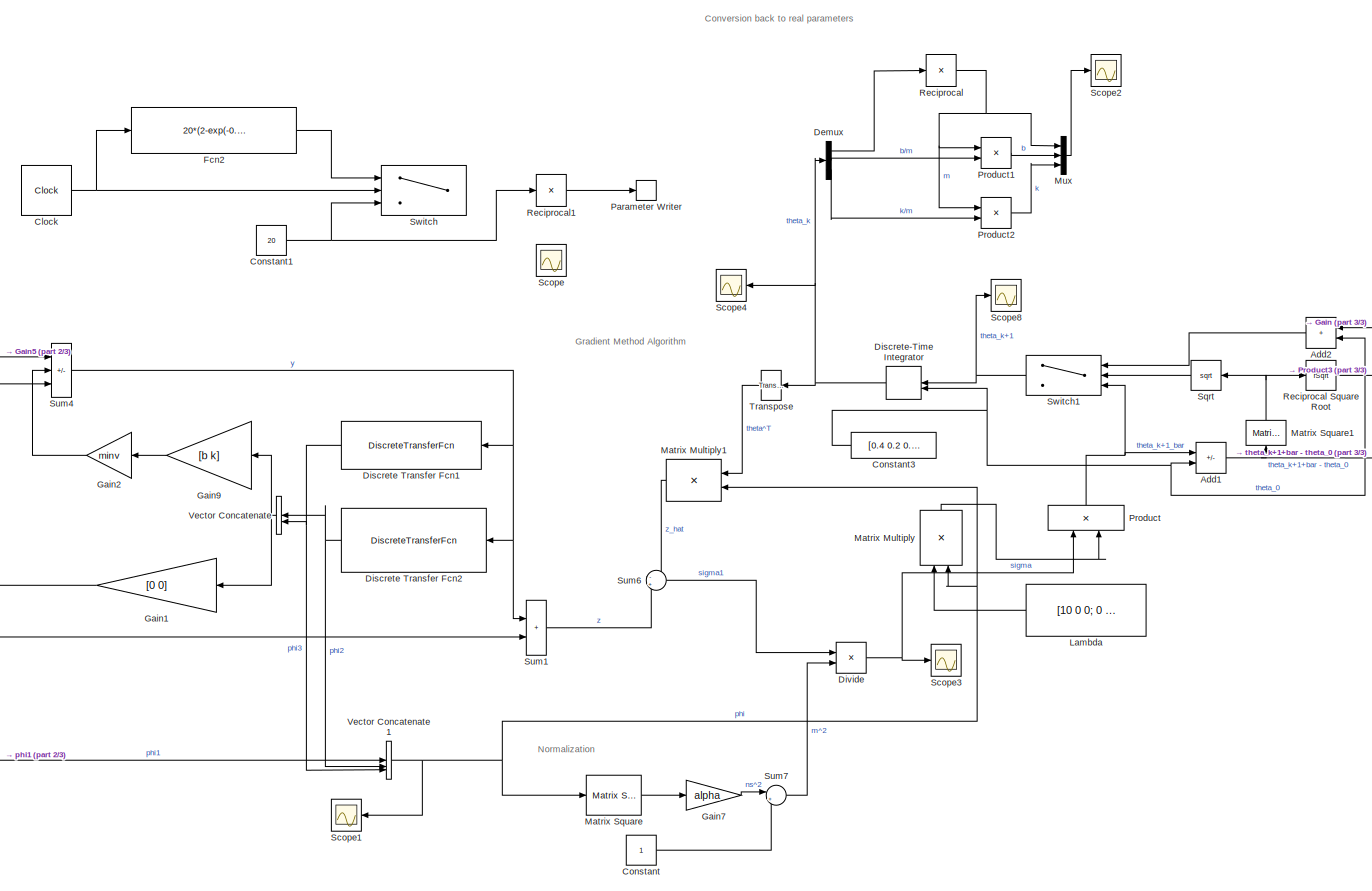
[diagram: root canvas - part 1/3, center side, full height]
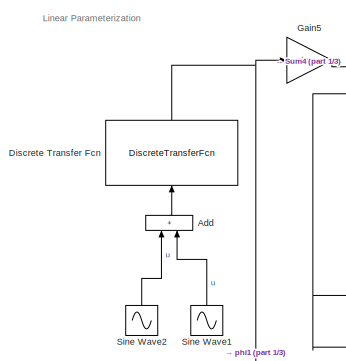
[diagram: root canvas - part 2/3, middle left region]
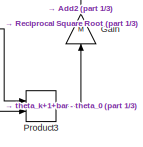
[diagram: root canvas - part 3/3, middle right region]
MODEL slx_7efa66e7af72
KIND model
CONFIG AbsTol = auto
CONFIG EnableMultiTasking = off
CONFIG FixedStep = auto
CONFIG MaxStep = auto
CONFIG MinStep = auto
CONFIG RelTol = 1e-3
CONFIG SampleTimeConstraint = Unconstrained
CONFIG SolverName = VariableStepAuto
CONFIG StartTime = 0.0
CONFIG StopTime = 700
WORKSPACE source: mxarray member
WORKSPACE M: Simulink.Parameter (value not decoded)
WORKSPACE alpha: Simulink.Parameter (value not decoded)
WORKSPACE b: Simulink.Parameter (value not decoded)
WORKSPACE k: Simulink.Parameter (value not decoded)
WORKSPACE m: Simulink.Parameter (value not decoded)
WORKSPACE minv: Simulink.Parameter (value not decoded)
BLOCK [Sum] Add
  IconShape = rectangular
  NameLocation = right
BLOCK [Sum] Add1
  IconShape = rectangular
  Inputs = +-
BLOCK [Sum] Add2
  IconShape = rectangular
BLOCK [Clock] Clock
  DisplayTime = on
BLOCK [Constant] Constant
BLOCK [Constant] Constant1
  Value = 20
BLOCK [Constant] Constant3
  NameLocation = top
  Value = [0.4 0.2 0.2]
BLOCK [Demux] Demux
  Outputs = 3
BLOCK [DiscreteTransferFcn] Discrete Transfer Fcn
  Denominator = [1 -1.482 0.5488]
  InputPortMap = u0
  NameLocation = right
  Numerator = [0.004104 0.00336]
BLOCK [DiscreteTransferFcn] Discrete Transfer Fcn1
  Denominator = [1 -1.482 0.5488]
  InputPortMap = u0
  NameLocation = top
  Numerator = [-0.004104 -0.00336]
BLOCK [DiscreteTransferFcn] Discrete Transfer Fcn2
  Denominator = [1 -1.482 0.5488]
  InputPortMap = u0
  NameLocation = top
  Numerator = [-0.07408 0.07408]
BLOCK [DiscreteIntegrator] Discrete-Time Integrator
  ICPrevOutput = DiscIntNeverNeededParam
  ICPrevScaledInput = DiscIntNeverNeededParam
  InitialCondition = [0.4 0.2 0.2]
  InitialConditionSetting = Auto
  InitialConditionSource = external
  NameLocation = top
  SampleTime = -1
BLOCK [Product] Divide
  Inputs = */
BLOCK [Fcn] Fcn2
  Expr = 20*(2-exp(-0.01*(u-20)))
BLOCK [Gain] Gain
  Gain = M
  NameLocation = right
BLOCK [Gain] Gain1
  Gain = [0 0]
  Multiplication = Matrix(K*u)
BLOCK [Gain] Gain2
  Gain = minv
BLOCK [Gain] Gain5
  Gain = minv
BLOCK [Gain] Gain7
  Gain = alpha
BLOCK [Gain] Gain9
  Gain = [b k]
  Multiplication = Matrix(K*u)
BLOCK [Constant] Lambda
  Value = [10 0 0; 0 10000 0; 0 0 100]
BLOCK [Product] Matrix Multiply
  Multiplication = Matrix(*)
  NameLocation = right
BLOCK [Product] Matrix Multiply1
  Multiplication = Matrix(*)
BLOCK [Reference] Matrix Square  REF=matrix_library/Matrix
Square
  LibrarySourceBlock = simulink/Matrix\nOperations/Matrix\nSquare
  SourceBlock = matrix_library/Matrix\nSquare
  SourceType = Matrix Square
BLOCK [Reference] Matrix Square1  REF=matrix_library/Matrix
Square
  LibrarySourceBlock = simulink/Matrix\nOperations/Matrix\nSquare
  NameLocation = right
  SourceBlock = matrix_library/Matrix\nSquare
  SourceType = Matrix Square
BLOCK [Mux] Mux
  DisplayOption = bar
  Inputs = 3
BLOCK [ParameterWriter] Parameter Writer
  AccessWorkspaceVariable = on
  WorkspaceVariableName = minv
BLOCK [Product] Product
  NameLocation = left
BLOCK [Product] Product1
BLOCK [Product] Product2
BLOCK [Product] Product3
BLOCK [Product] Reciprocal
  Inputs = /
  OutMax = [10000]
BLOCK [Sqrt] Reciprocal Square Root
  Operator = rSqrt
BLOCK [Product] Reciprocal1
  Inputs = /
BLOCK [Scope] Scope
  Floating = off
  NumInputPorts = 1
  ScopeSpecificationString = Simulink.scopes.TimeScopeBlockCfg('CurrentConfiguration', extmgr.ConfigurationSet(extmgr.Configuration('Core','General UI',true),extmgr.Configuration('Core','Source UI',true),extmgr.Configuration('Sources','WiredSimulink',true,'DataLoggingVariableName','ScopeData1'),extmgr.Configuration('Visuals','Time Domain',true,'SerializedDisplays',{struct('MinYLimReal','-1.00000','MaxYLimReal','1.00000','YLab...<+1432ch>
BLOCK [Scope] Scope1
  Floating = off
  NumInputPorts = 1
  ScopeSpecificationString = Simulink.scopes.TimeScopeBlockCfg('CurrentConfiguration', extmgr.ConfigurationSet(extmgr.Configuration('Core','General UI',true),extmgr.Configuration('Core','Source UI',true),extmgr.Configuration('Sources','WiredSimulink',true,'DataLoggingVariableName','ScopeData1'),extmgr.Configuration('Visuals','Time Domain',true,'SerializedDisplays',{struct('MinYLimReal','-0.12549','MaxYLimReal','0.12579','YLab...<+1475ch>
BLOCK [Scope] Scope2
  Floating = off
  NumInputPorts = 1
  ScopeSpecificationString = Simulink.scopes.TimeScopeBlockCfg('CurrentConfiguration', extmgr.ConfigurationSet(extmgr.Configuration('Core','General UI',true),extmgr.Configuration('Core','Source UI',true),extmgr.Configuration('Sources','WiredSimulink',true,'DataLoggingVariableName','ScopeData2'),extmgr.Configuration('Visuals','Time Domain',true,'SerializedDisplays',{struct('MinYLimReal','-0.47447','MaxYLimReal','4.34834','YLab...<+1799ch>
BLOCK [Scope] Scope3
  Floating = off
  NumInputPorts = 1
  ScopeSpecificationString = Simulink.scopes.TimeScopeBlockCfg('CurrentConfiguration', extmgr.ConfigurationSet(extmgr.Configuration('Core','General UI',true),extmgr.Configuration('Core','Source UI',true),extmgr.Configuration('Sources','WiredSimulink',true,'DataLoggingVariableName','ScopeData3'),extmgr.Configuration('Visuals','Time Domain',true,'SerializedDisplays',{struct('MinYLimReal','-72.5635','MaxYLimReal','71.60589','YLa...<+1366ch>
BLOCK [Scope] Scope4
  Floating = off
  NumInputPorts = 1
  ScopeSpecificationString = Simulink.scopes.TimeScopeBlockCfg('CurrentConfiguration', extmgr.ConfigurationSet(extmgr.Configuration('Core','General UI',true),extmgr.Configuration('Core','Source UI',true),extmgr.Configuration('Sources','WiredSimulink',true,'DataLoggingVariableName','ScopeData4'),extmgr.Configuration('Visuals','Time Domain',true,'SerializedDisplays',{struct('MinYLimReal','-22.30286','MaxYLimReal','202.72576','Y...<+1497ch>
BLOCK [Scope] Scope8
  Floating = off
  NumInputPorts = 1
  ScopeSpecificationString = Simulink.scopes.TimeScopeBlockCfg('CurrentConfiguration', extmgr.ConfigurationSet(extmgr.Configuration('Core','General UI',true),extmgr.Configuration('Core','Source UI',true),extmgr.Configuration('Sources','WiredSimulink',true,'DataLoggingVariableName','ScopeData5'),extmgr.Configuration('Visuals','Time Domain',true,'SerializedDisplays',{struct('MinYLimReal','-0.4381','MaxYLimReal','1.30995','YLabe...<+1527ch>
BLOCK [Sin] Sine Wave1
  Amplitude = 5
  Frequency = 0.5
  NameLocation = right
  SampleTime = 0.1
BLOCK [Sin] Sine Wave2
  Amplitude = 2
  Frequency = 2
  NameLocation = right
  SampleTime = 0.1
BLOCK [Sqrt] Sqrt
BLOCK [Sum] Sum1
  IconShape = rectangular
BLOCK [Sum] Sum4
  IconShape = rectangular
  Inputs = ++-
BLOCK [Sum] Sum6
  Inputs = -+
BLOCK [Sum] Sum7
  Inputs = |++
BLOCK [Switch] Switch
  InputSameDT = off
  SaturateOnIntegerOverflow = off
  Threshold = 20
  ZeroCross = off
BLOCK [Switch] Switch1
  InputSameDT = off
  SaturateOnIntegerOverflow = off
  Threshold = M
BLOCK [Reference] Transpose  REF=matrix_library/Transpose
  LibrarySourceBlock = simulink/Matrix\nOperations/Transpose
  SourceBlock = matrix_library/Transpose
  SourceType = Transpose
BLOCK [Concatenate] Vector Concatenate
BLOCK [Concatenate] Vector Concatenate1
  NumInputs = 3
ANNOTATION (root): Conversion back to real parameters
ANNOTATION (root): Gradient Method Algorithm
ANNOTATION (root): Linear Parameterization
ANNOTATION (root): Normalization
NET Add1:1 -> Matrix Square1:1, Product3:2
LINE Add2:1 -> Switch1:1
LINE Add:1 -> Discrete Transfer Fcn:1
NET Clock:1 -> Fcn2:1, Switch:2
NET Constant1:1 -> Reciprocal1:1, Switch:3
NET Constant3:1 -> Add1:2, Add2:2, Discrete-Time Integrator:2
LINE Constant:1 -> Sum7:2
LINE Demux:1 -> Reciprocal:1
LINE Demux:2 -> Product1:2
LINE Demux:3 -> Product2:2
NET Discrete Transfer Fcn1:1 -> Vector Concatenate1:3, Vector Concatenate:2
NET Discrete Transfer Fcn2:1 -> Vector Concatenate1:2, Vector Concatenate:1
NET Discrete Transfer Fcn:1 -> Gain5:1, Vector Concatenate1:1
NET Discrete-Time Integrator:1 -> Demux:1, Scope4:1, Transpose:1
NET Divide:1 -> Product:1, Scope3:1
LINE Fcn2:1 -> Switch:1
NET Gain1:1 -> Sum1:2, Sum4:3
LINE Gain2:1 -> Sum4:2
LINE Gain5:1 -> Sum4:1
LINE Gain7:1 -> Sum7:1
LINE Gain9:1 -> Gain2:1
LINE Gain:1 -> Add2:1
LINE Lambda:1 -> Matrix Multiply:1
LINE Matrix Multiply1:1 -> Sum6:1
LINE Matrix Multiply:1 -> Product:2
NET Matrix Square1:1 -> Reciprocal Square Root:1, Sqrt:1
LINE Matrix Square:1 -> Gain7:1
LINE Mux:1 -> Scope2:1
LINE Product1:1 -> Mux:2
LINE Product2:1 -> Mux:3
LINE Product3:1 -> Gain:1
NET Product:1 -> Add1:1, Switch1:3
LINE Reciprocal Square Root:1 -> Product3:1
LINE Reciprocal1:1 -> Parameter Writer:1
NET Reciprocal:1 -> Mux:1, Product1:1, Product2:1
LINE Sine Wave1:1 -> Add:2
LINE Sine Wave2:1 -> Add:1
LINE Sqrt:1 -> Switch1:2
LINE Sum1:1 -> Sum6:2
NET Sum4:1 -> Discrete Transfer Fcn1:1, Discrete Transfer Fcn2:1, Sum1:1
LINE Sum6:1 -> Divide:1
LINE Sum7:1 -> Divide:2
NET Switch1:1 -> Discrete-Time Integrator:1, Scope8:1
LINE Transpose:1 -> Matrix Multiply1:1
NET Vector Concatenate1:1 -> Matrix Multiply1:2, Matrix Multiply:2, Matrix Square:1, Scope1:1
NET Vector Concatenate:1 -> Gain1:1, Gain9:1
note: NET lines group one-source signal fan-out (src -> all destinations, sorted); 1:1 wires keep LINE
